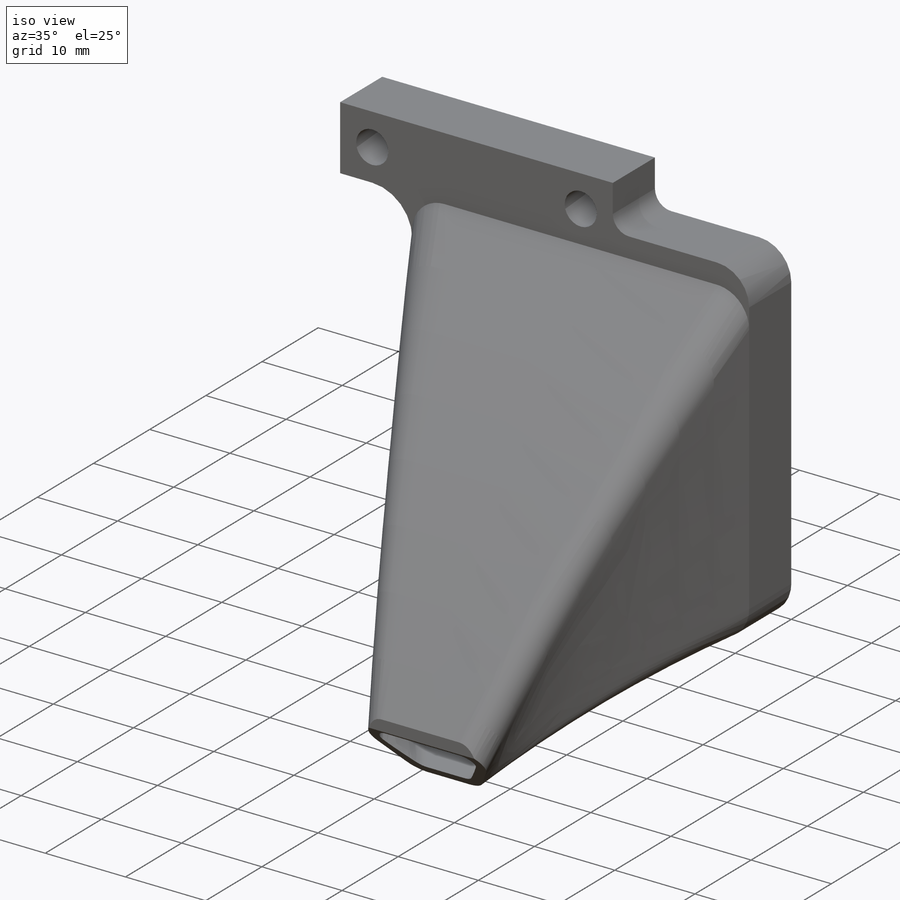
[diagram: iso view]
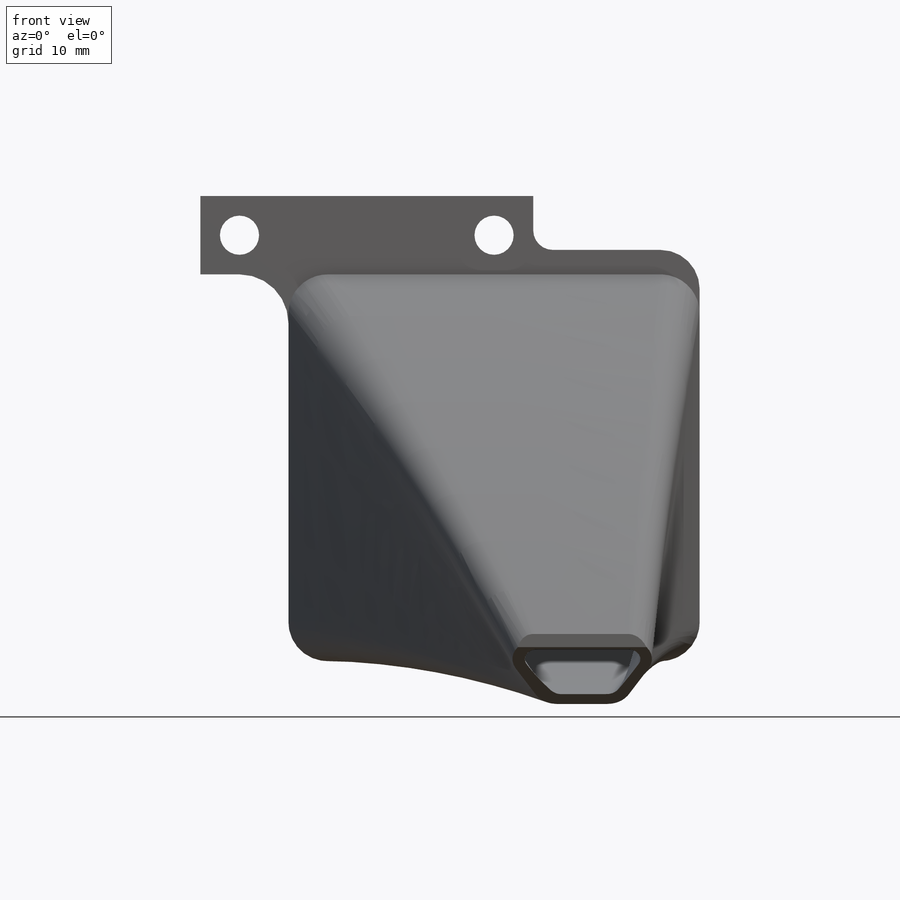
[diagram: front view]
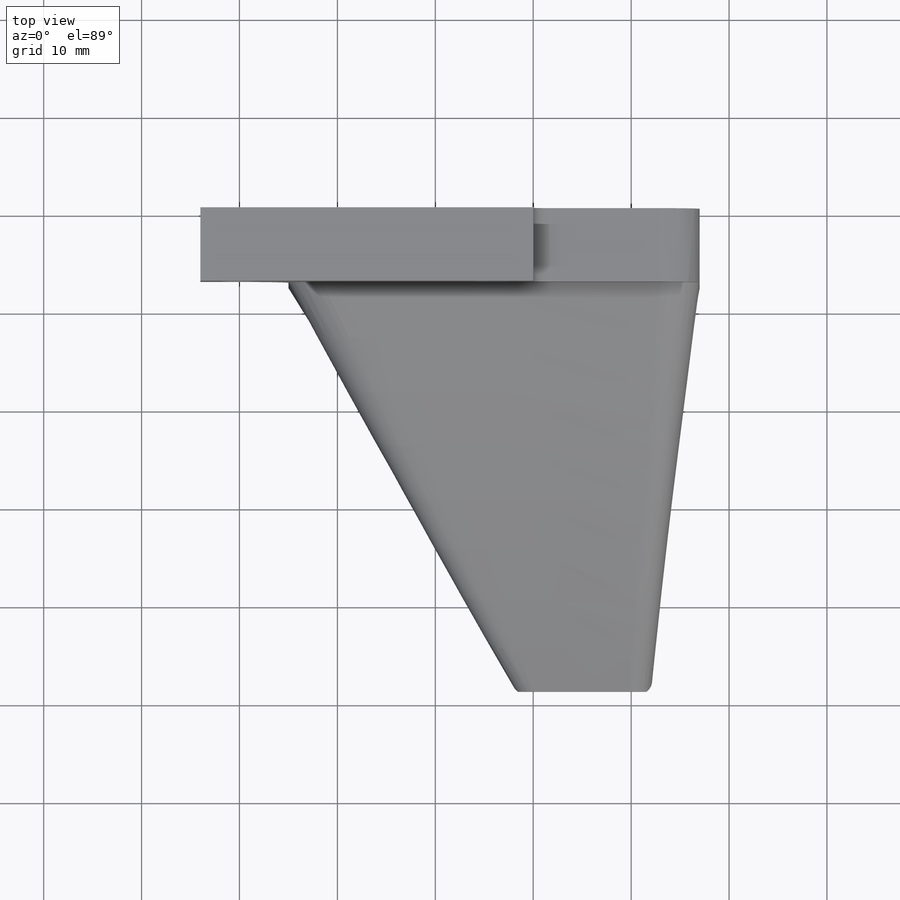
[diagram: top view]
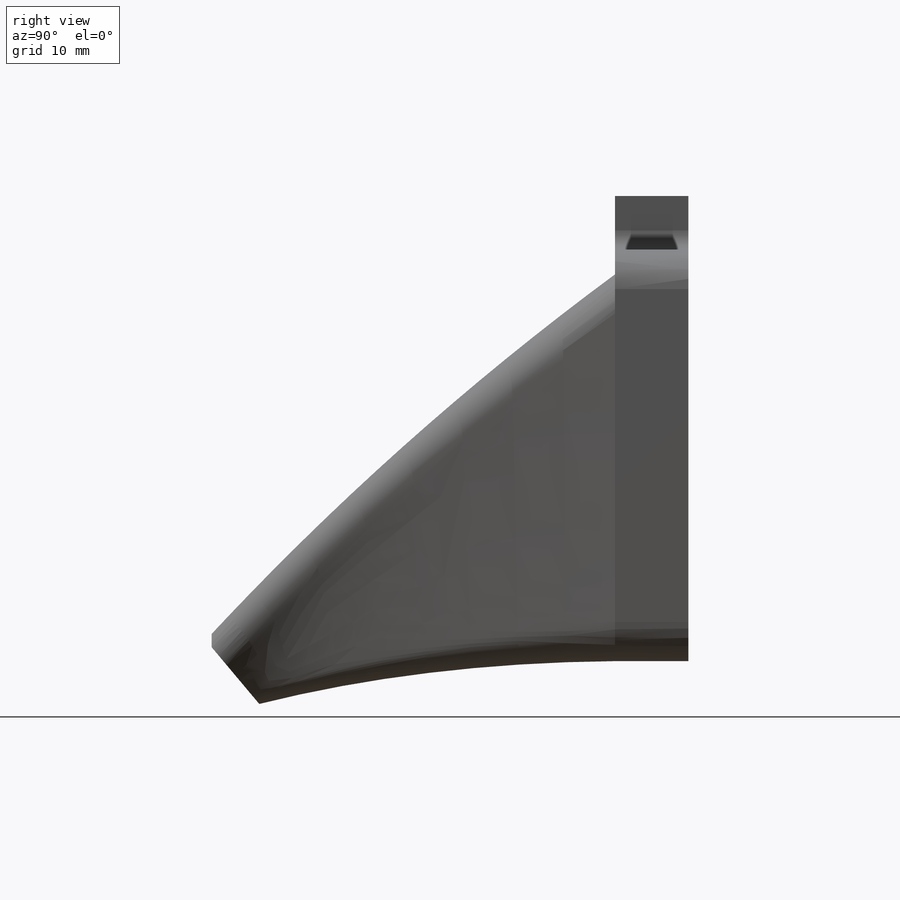
[diagram: right view]
SOLIDWORKS PART (.sldprt)
format: sldprt  version: not decoded by parser v0  size: 404,992 bytes
history: native  units: mm
features: sketch x7, plane x3, extrude x2, material x1, cut_extrude x1 (+11 scaffold rows collapsed)
feature tree (25):
  scaffold x11  (default folders/planes/origin — collapsed)
  material  "Material <not specified>"
  sketch  "Sketch1"  dims[c1.D1=5.2mm c1.D2=4.0mm c1.D15=2.0mm c1.D20=10.0mm c1.D21=2.0mm c1.D22=4.0mm c1.D23=5.0mm c2.D2=~41.666699mm c2.D3=26.0mm c2.D4=7.5mm c2.D5=10.0mm c2.D6=32.0mm c2.D7=4.0mm c2.D8=4.0mm c2.D9=4.0mm c2.D10=4.0mm c2.D11=5.0mm c2.D12=4.0mm c2.D13=5.0mm c2.D14=6.0mm c2.D16=2.0mm c2.D17=2.0mm c2.D18=2.0mm c2.D19=8.0mm]
  extrude  "Boss-Extrude1"  Depth=7.5mm
  sketch  "Sketch5"
  extrude  "Boss-Extrude2"  Depth=0.5mm
  plane  "Plane1"  Offset=40mm
  sketch  "Sketch2"
  plane  "Plane2"
  sketch  "Sketch3"  dims[c1.D6=2.5mm c1.D1=8.5mm c1.D2=35.0mm c1.D3=2.0mm c1.D4=8.0mm c1.D5=18.0mm c2.D3=0.0mm]
  sketch  "Sketch4"  dims[D1=4.0mm]
  plane  "Plane3"
  sketch  "Sketch7"  dims[c1.D1=300.0mm c2.D1=1.18mm]
  sketch  "Sketch8"  dims[D1=48.7mm]
  cut_extrude  "Cut-Extrude1"  [1 undecoded]
decode coverage: 7 of 10 modeling features carry decoded parameters
note: ~ marks probable driven/reference dimensions
note: 1 parameter value undecoded
note: suppression state not decoded; provenance and decode notes live in map.json
